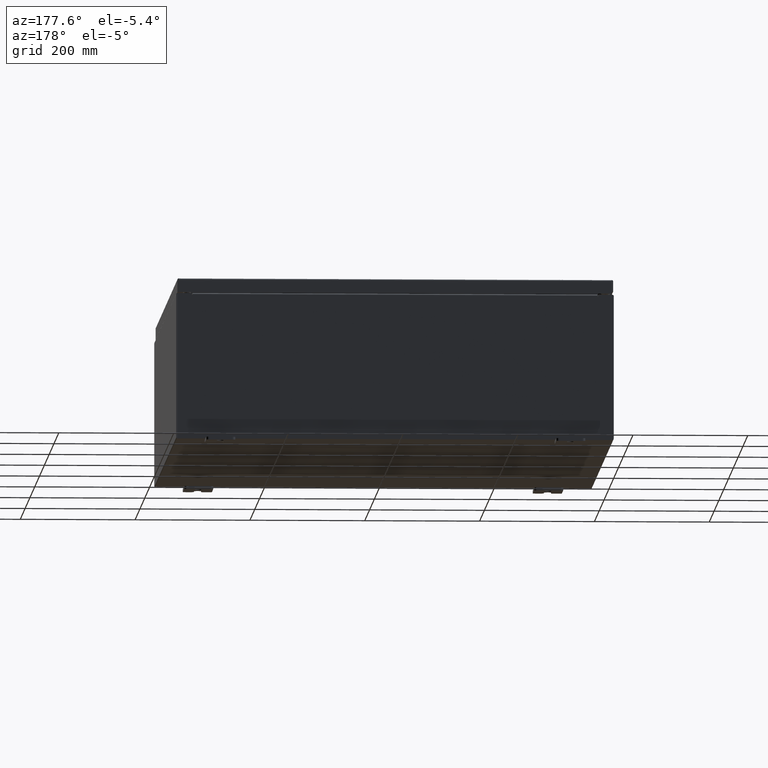
[diagram: clean part render]
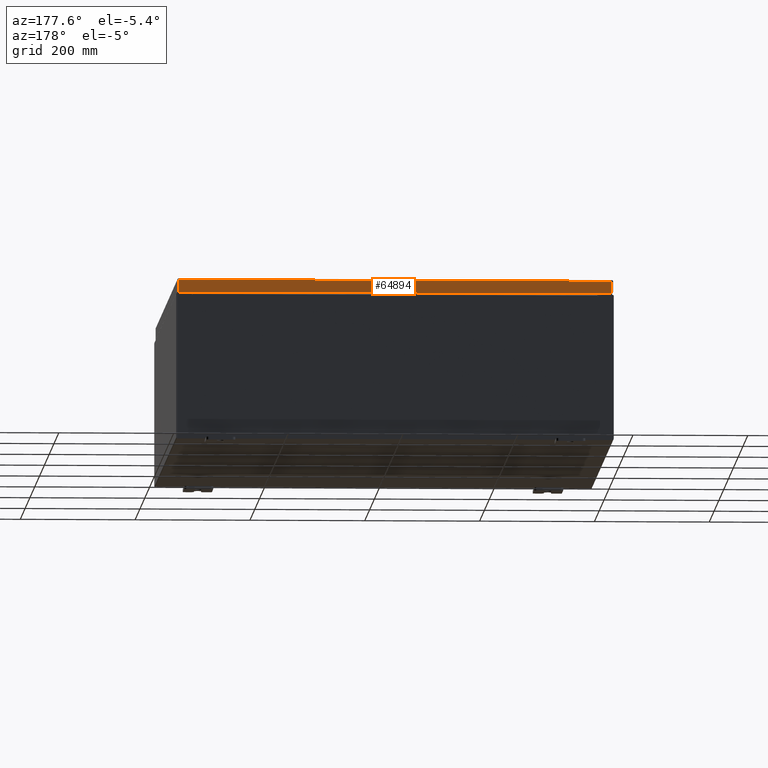
[diagram: same view with one face highlighted and labeled with its STEP entity id]
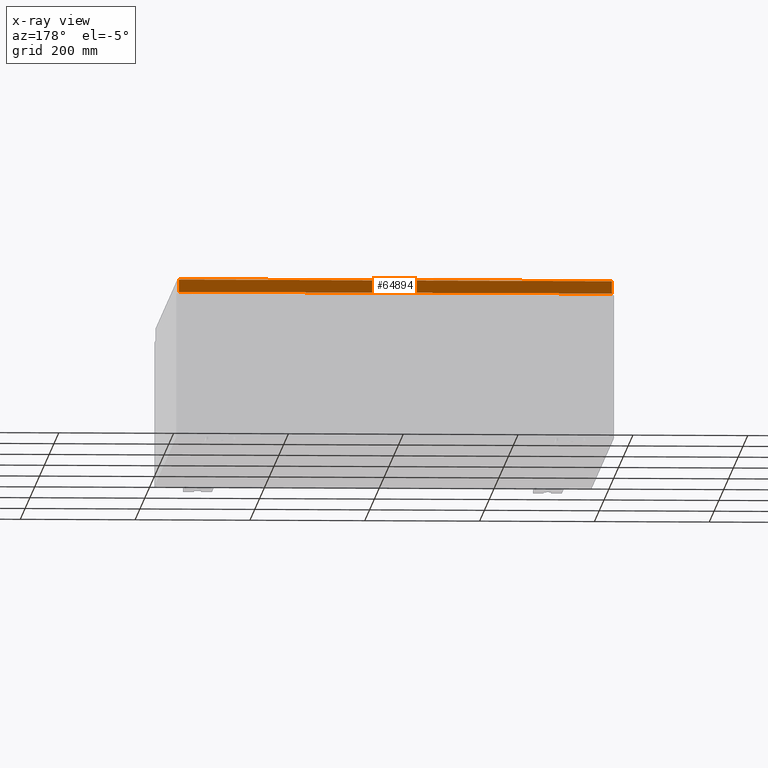
[diagram: x-ray of the same camera — body ghosted, the highlighted face saturated]
A machine part, auxiliary view. The second image highlights one B-rep face of the part: STEP entity #64894.
The next image is the same camera in x-ray: the body ghosted, the highlighted face saturated — about 0% of this face is hidden behind the body in this view.
In plain terms, the highlighted planar face has unit normal (0, -1, -0).
Its self-contained STEP definition (entity closure, byte-faithful):
#90 = EDGE_CURVE ( 'NONE', #18285, #29936, #46556, .T. ) ;
#140 = ORIENTED_EDGE ( 'NONE', *, *, #27013, .F. ) ;
#1537 = LINE ( 'NONE', #6815, #65915 ) ;
#1609 = CARTESIAN_POINT ( 'NONE',  ( 14.84865786437626900, 17.93750000000000000, -0.9376999999999996400 ) ) ;
#2960 = CARTESIAN_POINT ( 'NONE',  ( -14.84865786437627100, 17.93750000000000000, -0.07469999999999980800 ) ) ;
#3125 = ORIENTED_EDGE ( 'NONE', *, *, #63377, .F. ) ;
#3290 = VECTOR ( 'NONE', #8105, 39.37007874015748100 ) ;
#6815 = CARTESIAN_POINT ( 'NONE',  ( -14.93750000000000200, 17.93750000000000000, -0.08770000000000008300 ) ) ;
#8105 = DIRECTION ( 'NONE',  ( -0.0000000000000000000, 2.532419924601855400E-015, -1.000000000000000000 ) ) ;
#8547 = CARTESIAN_POINT ( 'NONE',  ( -14.93750000000000200, 17.93750000000000000, -0.9377000000000035300 ) ) ;
#10145 = VERTEX_POINT ( 'NONE', #15807 ) ;
#15807 = CARTESIAN_POINT ( 'NONE',  ( -14.84865786437627100, 17.93750000000000000, -0.9377000000000035300 ) ) ;
#15930 = CARTESIAN_POINT ( 'NONE',  ( -5.607638657142989500E-030, 17.93750000000000000, 4.568609605355735900E-014 ) ) ;
#16888 = FACE_OUTER_BOUND ( 'NONE', #60985, .T. ) ;
#18285 = VERTEX_POINT ( 'NONE', #28553 ) ;
#19023 = DIRECTION ( 'NONE',  ( 1.000000000000000000, -4.379057701015054300E-047, 1.234475243998914100E-016 ) ) ;
#21066 = DIRECTION ( 'NONE',  ( 0.0000000000000000000, 2.532419924601855400E-015, -1.000000000000000000 ) ) ;
#26013 = PLANE ( 'NONE',  #65629 ) ;
#27013 = EDGE_CURVE ( 'NONE', #18285, #53595, #1537, .T. ) ;
#28553 = CARTESIAN_POINT ( 'NONE',  ( 14.84865786437626900, 17.93750000000000000, -0.08770000000000008300 ) ) ;
#29936 = VERTEX_POINT ( 'NONE', #1609 ) ;
#31266 = ORIENTED_EDGE ( 'NONE', *, *, #56715, .F. ) ;
#32102 = CARTESIAN_POINT ( 'NONE',  ( -14.84865786437627300, 17.93750000000000000, -0.08770000000000008300 ) ) ;
#34551 = VECTOR ( 'NONE', #19023, 39.37007874015748100 ) ;
#37337 = DIRECTION ( 'NONE',  ( -1.000000000000000000, -3.126209704330586900E-031, -7.827163121213317500E-046 ) ) ;
#38673 = ORIENTED_EDGE ( 'NONE', *, *, #90, .T. ) ;
#43640 = CARTESIAN_POINT ( 'NONE',  ( 14.84865786437626800, 17.93750000000000000, 4.568609605355735900E-014 ) ) ;
#44084 = DIRECTION ( 'NONE',  ( 0.0000000000000000000, 2.532419924601855400E-015, -1.000000000000000000 ) ) ;
#44956 = VECTOR ( 'NONE', #44084, 39.37007874015748100 ) ;
#45530 = LINE ( 'NONE', #2960, #3290 ) ;
#46556 = LINE ( 'NONE', #43640, #44956 ) ;
#48076 = LINE ( 'NONE', #8547, #34551 ) ;
#51531 = DIRECTION ( 'NONE',  ( 3.126209704330586500E-031, -1.000000000000000000, -2.532419924601855400E-015 ) ) ;
#53595 = VERTEX_POINT ( 'NONE', #32102 ) ;
#56715 = EDGE_CURVE ( 'NONE', #53595, #10145, #45530, .T. ) ;
#60985 = EDGE_LOOP ( 'NONE', ( #140, #38673, #3125, #31266 ) ) ;
#63377 = EDGE_CURVE ( 'NONE', #10145, #29936, #48076, .T. ) ;
#64894 = ADVANCED_FACE ( 'NONE', ( #16888 ), #26013, .F. ) ;
#65629 = AXIS2_PLACEMENT_3D ( 'NONE', #15930, #51531, #21066 ) ;
#65915 = VECTOR ( 'NONE', #37337, 39.37007874015748100 ) ;